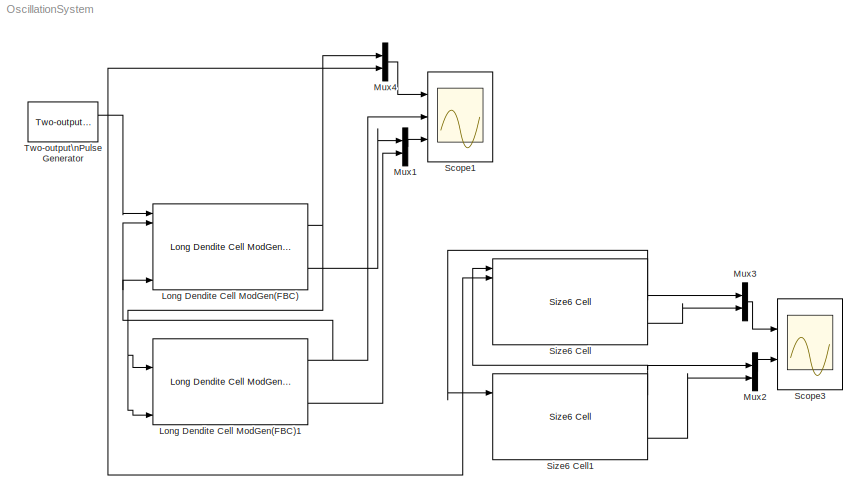
MODEL OscillationSystem
KIND model
BLOCK [Reference] Long Dendite Cell ModGen(FBC)  REF=NeuroModelerLibrary/Dendrites Cells/Long Dendite Cell ModGen(FBC)
  AllowZeroVariantControls = off
  AutoFrameSizeCalculation = off
  Latency = 0
  NameLocation = top
  Ports = [8, 3]
  PropagateVariantConditions = off
  RTWMemSecDataConstants = Inherit from model
  RTWMemSecDataInternal = Inherit from model
  RTWMemSecDataParameters = Inherit from model
  RTWMemSecFuncExecute = Inherit from model
  RTWMemSecFuncInitTerm = Inherit from model
  SID = 16
  ShowPortLabels = FromPortIcon
  SourceBlock = NeuroModelerLibrary/Dendrites Cells/Long Dendite Cell ModGen(FBC)
  SourceType = SubSystem
  SystemSampleTime = -1
  VariantActivationTime = update diagram
BLOCK [Reference] Long Dendite Cell ModGen(FBC)1  REF=NeuroModelerLibrary/Dendrites Cells/Long Dendite Cell ModGen(FBC)
  AllowZeroVariantControls = off
  AutoFrameSizeCalculation = off
  Latency = 0
  NameLocation = top
  Ports = [8, 3]
  PropagateVariantConditions = off
  RTWMemSecDataConstants = Inherit from model
  RTWMemSecDataInternal = Inherit from model
  RTWMemSecDataParameters = Inherit from model
  RTWMemSecFuncExecute = Inherit from model
  RTWMemSecFuncInitTerm = Inherit from model
  SID = 17
  ShowPortLabels = FromPortIcon
  SourceBlock = NeuroModelerLibrary/Dendrites Cells/Long Dendite Cell ModGen(FBC)
  SourceType = SubSystem
  SystemSampleTime = -1
  VariantActivationTime = update diagram
BLOCK [Mux] Mux1
  DisplayOption = bar
  Inputs = 2
  Ports = [2, 1]
  SID = 3
BLOCK [Mux] Mux2
  DisplayOption = bar
  Inputs = 2
  Ports = [2, 1]
  SID = 4
BLOCK [Mux] Mux3
  DisplayOption = bar
  Inputs = 2
  Ports = [2, 1]
  SID = 5
BLOCK [Mux] Mux4
  DisplayOption = bar
  Inputs = 2
  Ports = [2, 1]
  SID = 6
BLOCK [Scope] Scope1
  Floating = off
  NumInputPorts = 3
  Ports = [3]
  SID = 7
  ScopeSpecificationString = Simulink.scopes.TimeScopeBlockCfg('CurrentConfiguration', extmgr.ConfigurationSet(extmgr.Configuration('Core','General UI',true),extmgr.Configuration('Core','Source UI',true),extmgr.Configuration('Sources','WiredSimulink',true,'DataLoggingSaveFormat','StructureWithTime','DataLoggingMaxPoints','5000000','DataLoggingLimitDataPoints',true,'DataLoggingDecimation','1','DataLoggingDecimateData',true),ex...<+3131ch>
BLOCK [Scope] Scope3
  Floating = off
  NumInputPorts = 2
  Ports = [2]
  SID = 8
  ScopeSpecificationString = Simulink.scopes.TimeScopeBlockCfg('CurrentConfiguration', extmgr.ConfigurationSet(extmgr.Configuration('Core','General UI',true),extmgr.Configuration('Core','Source UI',true),extmgr.Configuration('Sources','WiredSimulink',true,'DataLoggingVariableName','ScopeData2','DataLoggingSaveFormat','StructureWithTime','DataLoggingMaxPoints','5000000','DataLoggingLimitDataPoints',true,'DataLoggingDecimation'...<+2489ch>
BLOCK [Reference] Size6 Cell  REF=NeuroModelerLibrary/Sized Cells/Size6 Cell
  AllowZeroVariantControls = off
  AutoFrameSizeCalculation = off
  Latency = 0
  NameLocation = top
  Ports = [8, 3]
  PropagateVariantConditions = off
  RTWMemSecDataConstants = Inherit from model
  RTWMemSecDataInternal = Inherit from model
  RTWMemSecDataParameters = Inherit from model
  RTWMemSecFuncExecute = Inherit from model
  RTWMemSecFuncInitTerm = Inherit from model
  SID = 9
  ShowPortLabels = FromPortIcon
  SourceBlock = NeuroModelerLibrary/Sized Cells/Size6 Cell
  SourceType = SubSystem
  SystemSampleTime = -1
  VariantActivationTime = update diagram
BLOCK [Reference] Size6 Cell1  REF=NeuroModelerLibrary/Sized Cells/Size6 Cell
  AllowZeroVariantControls = off
  AutoFrameSizeCalculation = off
  Latency = 0
  NameLocation = top
  Ports = [8, 3]
  PropagateVariantConditions = off
  RTWMemSecDataConstants = Inherit from model
  RTWMemSecDataInternal = Inherit from model
  RTWMemSecDataParameters = Inherit from model
  RTWMemSecFuncExecute = Inherit from model
  RTWMemSecFuncInitTerm = Inherit from model
  SID = 10
  ShowPortLabels = FromPortIcon
  SourceBlock = NeuroModelerLibrary/Sized Cells/Size6 Cell
  SourceType = SubSystem
  SystemSampleTime = -1
  VariantActivationTime = update diagram
BLOCK [Reference] Two-output\nPulse Generator  REF=NeuroModelerLibrary/Support/Two-output\nPulse Generator
  A = 1
  OOff1 = 0.2
  OOff2 = 0.3
  OOn1 = 0.15
  OOn2 = 0.25
  P1 = 200
  P2 = 200
  PW = 1
  Ports = [0, 2]
  RTWMemSecDataConstants = Inherit from model
  RTWMemSecDataInternal = Inherit from model
  RTWMemSecDataParameters = Inherit from model
  RTWMemSecFuncExecute = Inherit from model
  RTWMemSecFuncInitTerm = Inherit from model
  SID = 11
  ST = 0.001
  SourceBlock = NeuroModelerLibrary/Support/Two-output\nPulse Generator
NET Long Dendite Cell ModGen(FBC)1:1 -> Long Dendite Cell ModGen(FBC):2, Long Dendite Cell ModGen(FBC):8, Scope1:2
LINE Long Dendite Cell ModGen(FBC)1:3 -> Mux1:2
NET Long Dendite Cell ModGen(FBC):1 -> Long Dendite Cell ModGen(FBC)1:3, Long Dendite Cell ModGen(FBC)1:8, Mux4:1
LINE Long Dendite Cell ModGen(FBC):3 -> Mux1:1
LINE Mux1:1 -> Scope1:3
LINE Mux2:1 -> Scope3:2
LINE Mux3:1 -> Scope3:1
LINE Mux4:1 -> Scope1:1
NET Size6 Cell1:1 -> Mux2:1, Size6 Cell:1
LINE Size6 Cell1:3 -> Mux2:2
NET Size6 Cell:1 -> Mux3:1, Size6 Cell1:2
LINE Size6 Cell:3 -> Mux3:2
NET Two-output\nPulse Generator:1 -> Long Dendite Cell ModGen(FBC):1, Mux4:2, Size6 Cell:2
note: NET lines group one-source signal fan-out (src -> all destinations, sorted); 1:1 wires keep LINE
